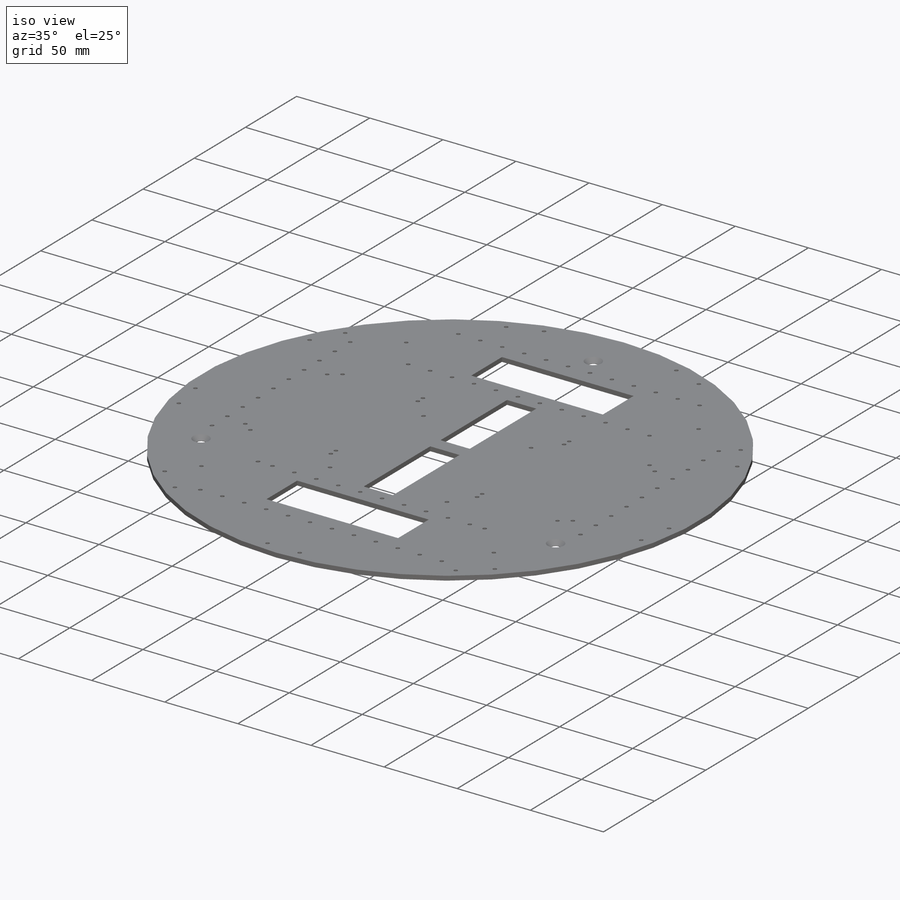
[diagram: iso view]
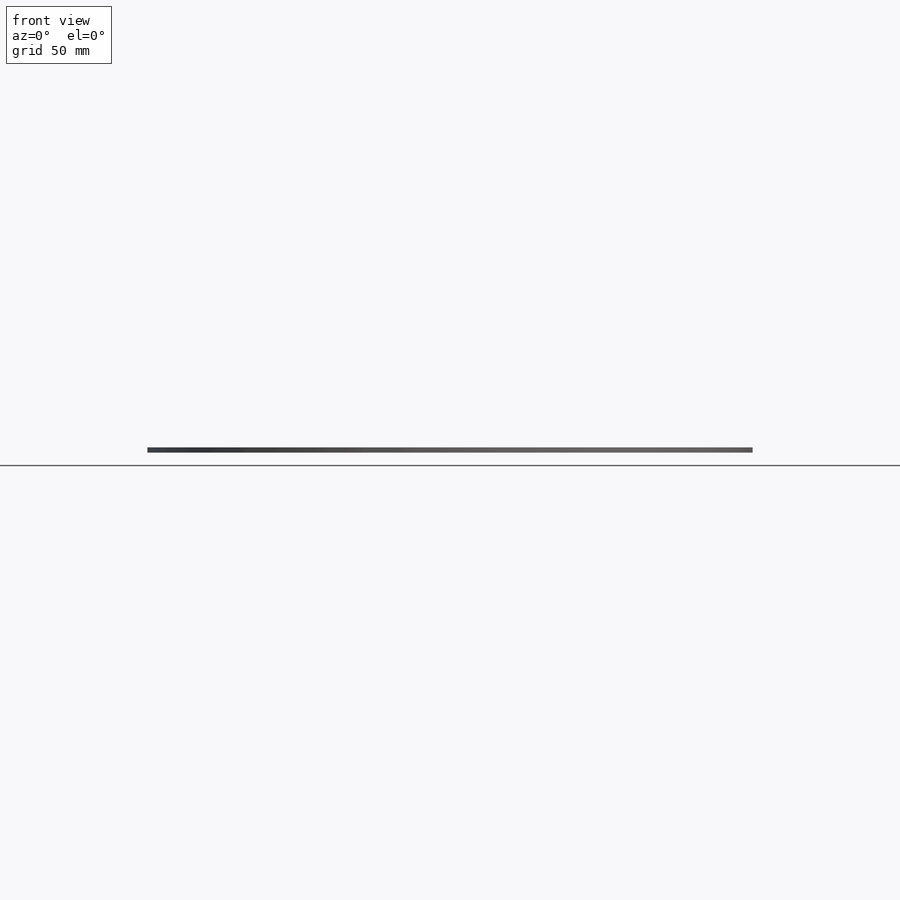
[diagram: front view]
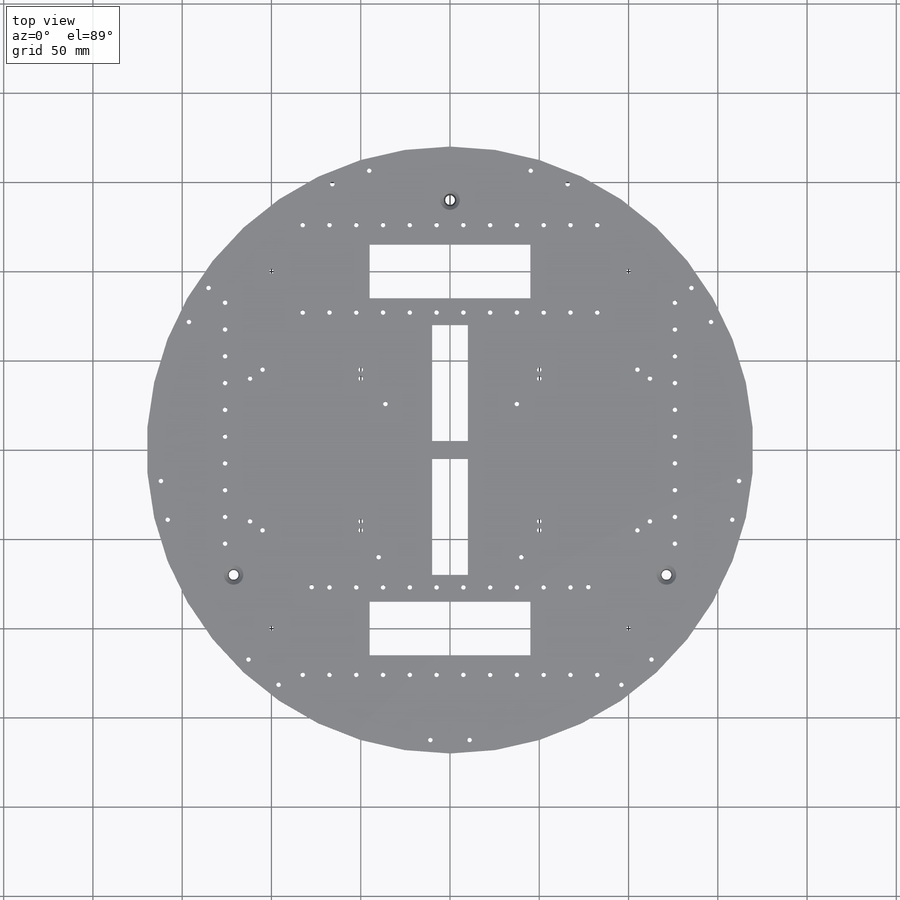
[diagram: top view]
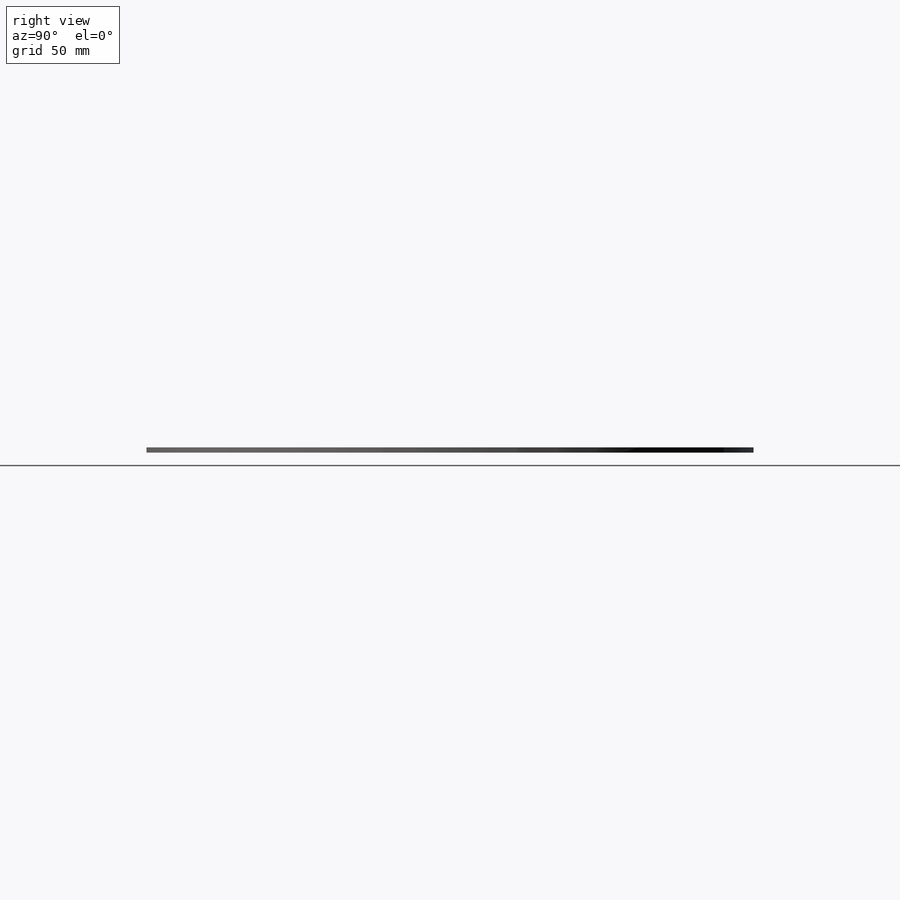
[diagram: right view]
SOLIDWORKS PART (.sldprt)
format: sldprt  version: not decoded by parser v0  size: 1,228,288 bytes
history: native  units: mm
features: thread x110, sketch x19, hole x6, plane x3, material x1, extrude x1, cut_extrude x1 + 5 further entries (+6 scaffold rows collapsed)
feature tree (152):
  scaffold x6  (default folders/planes/origin — collapsed)
  material  "1060 合金"
  "ｿﾘｯﾄﾞ ﾎﾞﾃﾞｨ"
  "ｻｰﾌｪｽ ﾎﾞﾃﾞｨ（複数）"
  plane  "VERT"
  plane  "HOR"
  plane  "CTR"
  "CS_DEF"
  "A_Y"
  "A_Z"
  sketch  "PNT_CG"
  sketch  "ｽｹｯﾁ1"  dims[D1=~121.073361mm]
  extrude  "ﾎﾞｽ - 押し出し1"  Depth=3mm
  sketch  "下段との支柱"  dims[c1.D1=~156.57113mm c1.D3=5.5mm c1.D2=~5.013558mm c2.D1=5.0mm c2.D2=5.0mm c2.D3=5.0mm c3.D1=340.0mm c4.D1=120.0deg c4.D2=340.0mm c5.D2=120.0deg c5.D3=90.0mm c5.D4=150.0mm c5.D5=20.0mm c5.D1=340.0mm]
  hole  "M3 丸皿ねじ用皿穴1"  [1 undecoded]
  sketch  "3Dｽｹｯﾁ7"
  sketch  "ｽｹｯﾁ17"  dims[hole-wizard template sketch: 54 standard entries collapsed; hole parameters kept: c17.通し穴の直径=5.5mm c17.通し穴の深さ=3.0mm c17.表面の皿穴の直径=11.0mm c17.D4=~3.666174mm c17.表面の皿穴の角度=90.0deg]
  sketch  "ｽｹｯﾁ18"  dims[c1.D1=90.0mm c1.D2=90.0mm c2.D1=170.0mm c2.D2=65.0mm c2.D3=65.0mm c3.D2=20.0mm c3.D1=4.0]
  cut_extrude  "ｶｯﾄ - 押し出し5"  Depth=3mm
  sketch  "上段との支柱"  dims[c1.D1=~29.946231mm c2.D1=90.0deg c3.D1=100.0mm c3.D2=4.0mm c3.D3=9.0mm c4.D2=~3.092616mm c5.D2=90.0deg c6.D2=20.0mm c6.D3=20.0mm c6.D4=9.0mm c6.D5=9.0mm c7.D4=9.0mm c7.D5=9.0mm c7.D6=3.0mm c7.D7=3.0mm c7.D8=1.5mm c7.D9=1.5mm c7.D1=4.0]
  hole  "M3 ねじ穴7"  [1 undecoded]
  sketch  "3Dｽｹｯﾁ8"
  sketch  "ｽｹｯﾁ20"  dims[hole-wizard template sketch: 60 standard entries collapsed; hole parameters kept: c18.次ｻｰﾌｪｽまでのねじ下穴ﾄﾞﾘﾙの深さ=3.0mm]
  thread  "穴のねじ山19"  Diameter=3mm  [1 undecoded]
  thread  "穴のねじ山20"  Diameter=3mm  [1 undecoded]
  thread  "穴のねじ山21"  Diameter=3mm  [1 undecoded]
  thread  "穴のねじ山22"  Diameter=3mm  [1 undecoded]
  sketch  "バッテリ&タワー&電源ボード ねじ穴"  dims[c1.D1=3.0mm c1.D2=3.0mm c1.D3=3.0mm c1.D4=3.0mm c2.D1=3.0mm c2.D2=3.0mm c2.D4=3.0mm c3.D1=3.0mm c3.D2=3.0mm c3.D3=3.0mm c3.D4=3.0mm c4.D1=0.0mm c4.D2=50.0mm c5.D1=90.0mm c5.D2=340.0mm c6.D2=90.0deg c7.D2=72.0mm c7.D3=0.0mm c7.D4=67.5mm c8.D3=50.0mm c8.D4=77.5mm c8.D1=36.17mm c8.D2=60.05mm c9.D3=39.98mm c9.D1=170.0mm c10.D1=45.0deg c10.D2=170.0mm c11.D2=~4.952181deg c12.D2=170.0mm c13.D2=~6.855487deg c14.D2=170.0mm c15.D2=90.0deg c16.D2=170.0mm c17.D2=45.0deg c17.D3=170.0mm c18.D3=90.0deg c19.D3=~120.208153mm c20.D3=90.0deg c20.D4=~169.772331mm c20.D1=170.0mm c21.D1=22.5deg c22.D1=50.0mm]
  hole  "M3 ねじ穴8"  [1 undecoded]
  sketch  "3Dｽｹｯﾁ9"
  sketch  "ｽｹｯﾁ22"  dims[hole-wizard template sketch: 60 standard entries collapsed; hole parameters kept: c18.次ｻｰﾌｪｽまでのねじ下穴ﾄﾞﾘﾙの深さ=3.0mm]
  thread  "穴のねじ山23"  Diameter=3mm  [1 undecoded]
  thread  "穴のねじ山24"  Diameter=3mm  [1 undecoded]
  thread  "穴のねじ山25"  Diameter=3mm  [1 undecoded]
  thread  "穴のねじ山26"  Diameter=3mm  [1 undecoded]
  thread  "穴のねじ山27"  Diameter=3mm  [1 undecoded]
  thread  "穴のねじ山28"  Diameter=3mm  [1 undecoded]
  thread  "穴のねじ山29"  Diameter=3mm  [1 undecoded]
  thread  "穴のねじ山30"  Diameter=3mm  [1 undecoded]
  thread  "穴のねじ山31"  Diameter=3mm  [1 undecoded]
  thread  "穴のねじ山32"  Diameter=3mm  [1 undecoded]
  thread  "穴のねじ山33"  Diameter=3mm  [1 undecoded]
  thread  "穴のねじ山34"  Diameter=3mm  [1 undecoded]
  thread  "穴のねじ山35"  Diameter=3mm  [1 undecoded]
  thread  "穴のねじ山36"  Diameter=3mm  [1 undecoded]
  hole  "M3 ねじ穴9"  [1 undecoded]
  sketch  "3Dｽｹｯﾁ10"
  sketch  "ｽｹｯﾁ23"  dims[hole-wizard template sketch: 60 standard entries collapsed; hole parameters kept: c18.次ｻｰﾌｪｽまでのねじ下穴ﾄﾞﾘﾙの深さ=3.0mm]
  thread  "穴のねじ山37"  Diameter=3mm  [1 undecoded]
  thread  "穴のねじ山38"  Diameter=3mm  [1 undecoded]
  sketch  "ボード取り付け位置"  dims[c1.D1=~3.310413mm c1.D2=~8.511206mm c1.D5=~1.693399mm c1.D14=3.0mm c1.D15=3.0mm c1.D6=~2.758674mm c1.D11=3.0mm c2.D1=340.0mm c3.D1=20.0deg c4.D1=3.75mm c4.D2=50.0mm c4.D3=50.0mm c4.D4=45.0mm c4.D5=45.0mm c4.D6=72.0mm c4.D7=72.0mm c4.D8=~26.255922mm c4.D9=340.0mm c5.D8=45.0mm c5.D9=45.0mm c5.D2=5.0mm c5.D3=5.0mm c5.D5=7.5mm c5.D7=22.5mm c5.D10=5.0mm c5.D11=5.0mm c5.D12=40.0mm c5.D13=40.0mm c5.D6=45.0mm c6.D12=45.0mm c6.D6=22.5mm c6.D11=77.0mm c7.D12=85.0mm c7.D11=340.0mm c8.D11=20.0deg c9.D11=170.0mm c10.D11=20.0deg c11.D11=170.0mm c11.D2=2.0 c11.D3=2.0 c11.D4=2.0 c11.D5=2.0 c11.D7=2.0 c11.D8=2.0 c11.D9=2.0 c11.D10=2.0 c11.D13=4.0 c11.D14=4.0 c11.D6=4.0 c12.D11=9.0]
  hole  "M3 ねじ穴11"  [1 undecoded]
  sketch  "3Dｽｹｯﾁ12"
  sketch  "ｽｹｯﾁ26"  dims[hole-wizard template sketch: 60 standard entries collapsed; hole parameters kept: c18.次ｻｰﾌｪｽまでのねじ下穴ﾄﾞﾘﾙの深さ=3.0mm]
  thread  "穴のねじ山47"  Diameter=3mm  [1 undecoded]
  thread  "穴のねじ山48"  Diameter=3mm  [1 undecoded]
  thread  "穴のねじ山49"  Diameter=3mm  [1 undecoded]
  thread  "穴のねじ山50"  Diameter=3mm  [1 undecoded]
  thread  "穴のねじ山51"  Diameter=3mm  [1 undecoded]
  thread  "穴のねじ山52"  Diameter=3mm  [1 undecoded]
  thread  "穴のねじ山53"  Diameter=3mm  [1 undecoded]
  thread  "穴のねじ山54"  Diameter=3mm  [1 undecoded]
  thread  "穴のねじ山55"  Diameter=3mm  [1 undecoded]
  thread  "穴のねじ山56"  Diameter=3mm  [1 undecoded]
  thread  "穴のねじ山57"  Diameter=3mm  [1 undecoded]
  thread  "穴のねじ山58"  Diameter=3mm  [1 undecoded]
  thread  "穴のねじ山59"  Diameter=3mm  [1 undecoded]
  thread  "穴のねじ山60"  Diameter=3mm  [1 undecoded]
  thread  "穴のねじ山61"  Diameter=3mm  [1 undecoded]
  thread  "穴のねじ山62"  Diameter=3mm  [1 undecoded]
  thread  "穴のねじ山63"  Diameter=3mm  [1 undecoded]
  thread  "穴のねじ山64"  Diameter=3mm  [1 undecoded]
  thread  "穴のねじ山65"  Diameter=3mm  [1 undecoded]
  thread  "穴のねじ山66"  Diameter=3mm  [1 undecoded]
  thread  "穴のねじ山67"  Diameter=3mm  [1 undecoded]
  thread  "穴のねじ山68"  Diameter=3mm  [1 undecoded]
  thread  "穴のねじ山69"  Diameter=3mm  [1 undecoded]
  thread  "穴のねじ山70"  Diameter=3mm  [1 undecoded]
  thread  "穴のねじ山71"  Diameter=3mm  [1 undecoded]
  thread  "穴のねじ山72"  Diameter=3mm  [1 undecoded]
  thread  "穴のねじ山73"  Diameter=3mm  [1 undecoded]
  thread  "穴のねじ山74"  Diameter=3mm  [1 undecoded]
  thread  "穴のねじ山75"  Diameter=3mm  [1 undecoded]
  thread  "穴のねじ山76"  Diameter=3mm  [1 undecoded]
  thread  "穴のねじ山77"  Diameter=3mm  [1 undecoded]
  thread  "穴のねじ山78"  Diameter=3mm  [1 undecoded]
  thread  "穴のねじ山79"  Diameter=3mm  [1 undecoded]
  thread  "穴のねじ山80"  Diameter=3mm  [1 undecoded]
  thread  "穴のねじ山81"  Diameter=3mm  [1 undecoded]
  thread  "穴のねじ山82"  Diameter=3mm  [1 undecoded]
  thread  "穴のねじ山83"  Diameter=3mm  [1 undecoded]
  thread  "穴のねじ山84"  Diameter=3mm  [1 undecoded]
  thread  "穴のねじ山85"  Diameter=3mm  [1 undecoded]
  thread  "穴のねじ山86"  Diameter=3mm  [1 undecoded]
  thread  "穴のねじ山87"  Diameter=3mm  [1 undecoded]
  thread  "穴のねじ山88"  Diameter=3mm  [1 undecoded]
  thread  "穴のねじ山89"  Diameter=3mm  [1 undecoded]
  thread  "穴のねじ山90"  Diameter=3mm  [1 undecoded]
  thread  "穴のねじ山91"  Diameter=3mm  [1 undecoded]
  thread  "穴のねじ山92"  Diameter=3mm  [1 undecoded]
  thread  "穴のねじ山93"  Diameter=3mm  [1 undecoded]
  thread  "穴のねじ山94"  Diameter=3mm  [1 undecoded]
  thread  "穴のねじ山95"  Diameter=3mm  [1 undecoded]
  thread  "穴のねじ山96"  Diameter=3mm  [1 undecoded]
  thread  "穴のねじ山97"  Diameter=3mm  [1 undecoded]
  thread  "穴のねじ山98"  Diameter=3mm  [1 undecoded]
  thread  "穴のねじ山99"  Diameter=3mm  [1 undecoded]
  thread  "穴のねじ山100"  Diameter=3mm  [1 undecoded]
  thread  "穴のねじ山101"  Diameter=3mm  [1 undecoded]
  thread  "穴のねじ山102"  Diameter=3mm  [1 undecoded]
  thread  "穴のねじ山103"  Diameter=3mm  [1 undecoded]
  thread  "穴のねじ山104"  Diameter=3mm  [1 undecoded]
  thread  "穴のねじ山105"  Diameter=3mm  [1 undecoded]
  thread  "穴のねじ山106"  Diameter=3mm  [1 undecoded]
  thread  "穴のねじ山107"  Diameter=3mm  [1 undecoded]
  thread  "穴のねじ山108"  Diameter=3mm  [1 undecoded]
  thread  "穴のねじ山109"  Diameter=3mm  [1 undecoded]
  thread  "穴のねじ山110"  Diameter=3mm  [1 undecoded]
  thread  "穴のねじ山111"  Diameter=3mm  [1 undecoded]
  thread  "穴のねじ山112"  Diameter=3mm  [1 undecoded]
  thread  "穴のねじ山113"  Diameter=3mm  [1 undecoded]
  thread  "穴のねじ山114"  Diameter=3mm  [1 undecoded]
  thread  "穴のねじ山115"  Diameter=3mm  [1 undecoded]
  thread  "穴のねじ山116"  Diameter=3mm  [1 undecoded]
  thread  "穴のねじ山117"  Diameter=3mm  [1 undecoded]
  thread  "穴のねじ山118"  Diameter=3mm  [1 undecoded]
  hole  "M3 ねじ穴12"  [1 undecoded]
  sketch  "3Dｽｹｯﾁ14"
  sketch  "ｽｹｯﾁ28"  dims[hole-wizard template sketch: 60 standard entries collapsed; hole parameters kept: c18.次ｻｰﾌｪｽまでのねじ下穴ﾄﾞﾘﾙの深さ=3.0mm]
  thread  "穴のねじ山119"  Diameter=3mm  [1 undecoded]
  thread  "穴のねじ山120"  Diameter=3mm  [1 undecoded]
  thread  "穴のねじ山121"  Diameter=3mm  [1 undecoded]
  thread  "穴のねじ山122"  Diameter=3mm  [1 undecoded]
  thread  "穴のねじ山123"  Diameter=3mm  [1 undecoded]
  thread  "穴のねじ山124"  Diameter=3mm  [1 undecoded]
  thread  "穴のねじ山125"  Diameter=3mm  [1 undecoded]
  thread  "穴のねじ山126"  Diameter=3mm  [1 undecoded]
  thread  "穴のねじ山127"  Diameter=3mm  [1 undecoded]
  thread  "穴のねじ山128"  Diameter=3mm  [1 undecoded]
  thread  "穴のねじ山129"  Diameter=3mm  [1 undecoded]
  thread  "穴のねじ山130"  Diameter=3mm  [1 undecoded]
  thread  "穴のねじ山131"  Diameter=3mm  [1 undecoded]
  thread  "穴のねじ山132"  Diameter=3mm  [1 undecoded]
  thread  "穴のねじ山133"  Diameter=3mm  [1 undecoded]
  thread  "穴のねじ山134"  Diameter=3mm  [1 undecoded]
  thread  "穴のねじ山135"  Diameter=3mm  [1 undecoded]
  thread  "穴のねじ山136"  Diameter=3mm  [1 undecoded]
decode coverage: 124 of 137 modeling features carry decoded parameters; 5 rows unclassified (native names shown)
note: ~ marks probable driven/reference dimensions
note: 116 parameter values undecoded
summary: no parameter record found for 6 features
note: suppression state not decoded; provenance and decode notes live in map.json
